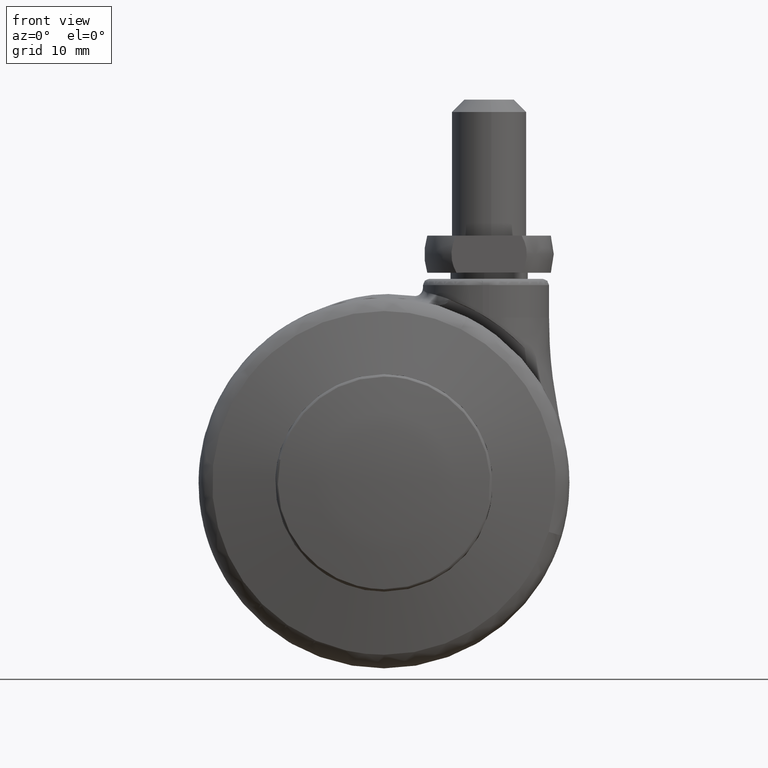
[diagram: clean part render]
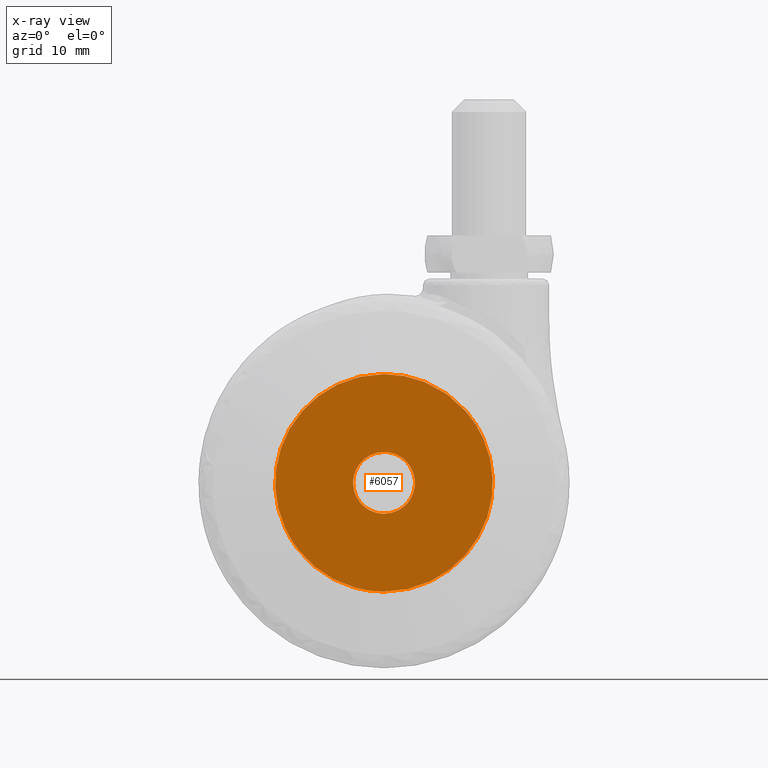
[diagram: x-ray — body ghosted, one internal face saturated and labeled with its STEP entity id]
A machine part, front view, then the same camera in x-ray: the body is ghosted and one INTERNAL B-rep face — a face not visible from any outside direction — is saturated and labeled: STEP entity #6057.
In plain terms, the highlighted face is a freeform B-spline surface patch.
Its self-contained STEP definition (entity closure, byte-faithful):
#3481=CARTESIAN_POINT('',(4.961331069103086,-17.423049182183451,0.620640010595849));
#3482=VERTEX_POINT('',#3481);
#3483=CARTESIAN_POINT('',(0.0,-17.423049182183451,4.999999999999998));
#3484=VERTEX_POINT('',#3483);
#3485=CARTESIAN_POINT('',(4.961331069103087,-17.423049182183455,0.620640010595849));
#3486=CARTESIAN_POINT('',(4.413493000398448,-17.423049182183455,4.999999999999998));
#3487=CARTESIAN_POINT('',(0.0,-17.423049182183451,4.999999999999998));
#3495=(BOUNDED_CURVE()B_SPLINE_CURVE(2,(#3485,#3486,#3487),.UNSPECIFIED.,.F.,.U.)B_SPLINE_CURVE_WITH_KNOTS((3,3),(0.271473928984074,0.500000000000000),.UNSPECIFIED.)CURVE()GEOMETRIC_REPRESENTATION_ITEM()RATIONAL_B_SPLINE_CURVE((0.954005430248767,0.732265053909415,1.0))REPRESENTATION_ITEM(''));
#3496=EDGE_CURVE('',#3482,#3484,#3495,.T.);
#3537=CARTESIAN_POINT('',(-4.999809615318402,-17.423049182183458,-0.043632677773131));
#3538=VERTEX_POINT('',#3537);
#3544=CARTESIAN_POINT('',(0.0,-17.423049182183451,4.999999999999998));
#3545=CARTESIAN_POINT('',(-5.000000000000001,-17.423049182183451,4.999999999999997));
#3546=CARTESIAN_POINT('',(-5.0,-17.423049182183451,-1.653219E-015));
#3547=CARTESIAN_POINT('',(-5.0,-17.423049182183451,-0.021816754384779));
#3548=CARTESIAN_POINT('',(-4.999809615318402,-17.423049182183462,-0.043632677773131));
#3556=(BOUNDED_CURVE()B_SPLINE_CURVE(2,(#3544,#3545,#3546,#3547,#3548),.UNSPECIFIED.,.F.,.U.)B_SPLINE_CURVE_WITH_KNOTS((3,2,3),(0.500000000000000,0.750000000000000,0.751539894354804),.UNSPECIFIED.)CURVE()GEOMETRIC_REPRESENTATION_ITEM()RATIONAL_B_SPLINE_CURVE((1.0,0.707106781186548,1.0,0.998195901543155,0.996414028054543))REPRESENTATION_ITEM(''));
#3557=EDGE_CURVE('',#3484,#3538,#3556,.T.);
#3584=CARTESIAN_POINT('',(0.0,-17.423049182183451,-5.000000000000002));
#3585=VERTEX_POINT('',#3584);
#3586=CARTESIAN_POINT('',(0.0,-17.423049182183451,-5.000000000000002));
#3587=CARTESIAN_POINT('',(5.000000000000001,-17.423049182183451,-5.000000000000002));
#3588=CARTESIAN_POINT('',(5.0,-17.423049182183451,-1.653219E-015));
#3589=CARTESIAN_POINT('',(5.0,-17.423049182183448,0.311524637866477));
#3590=CARTESIAN_POINT('',(4.961331069103087,-17.423049182183455,0.620640010595849));
#3598=(BOUNDED_CURVE()B_SPLINE_CURVE(2,(#3586,#3587,#3588,#3589,#3590),.UNSPECIFIED.,.F.,.U.)B_SPLINE_CURVE_WITH_KNOTS((3,2,3),(0.0,0.250000000000000,0.271473928984074),.UNSPECIFIED.)CURVE()GEOMETRIC_REPRESENTATION_ITEM()RATIONAL_B_SPLINE_CURVE((1.0,0.707106781186548,1.0,0.974841727277132,0.954005430248767))REPRESENTATION_ITEM(''));
#3599=EDGE_CURVE('',#3585,#3482,#3598,.T.);
#3601=CARTESIAN_POINT('',(-4.999809615318402,-17.423049182183458,-0.043632677773131));
#3602=CARTESIAN_POINT('',(-4.956556052417216,-17.423049182183448,-5.0));
#3603=CARTESIAN_POINT('',(0.0,-17.423049182183451,-5.000000000000002));
#3611=(BOUNDED_CURVE()B_SPLINE_CURVE(2,(#3601,#3602,#3603),.UNSPECIFIED.,.F.,.U.)B_SPLINE_CURVE_WITH_KNOTS((3,3),(0.751539894354805,1.0),.UNSPECIFIED.)CURVE()GEOMETRIC_REPRESENTATION_ITEM()RATIONAL_B_SPLINE_CURVE((0.996414028054542,0.708910879643393,1.0))REPRESENTATION_ITEM(''));
#3612=EDGE_CURVE('',#3538,#3585,#3611,.T.);
#3684=CARTESIAN_POINT('',(13.327396670484230,-17.423049182183451,11.495238057019540));
#3685=VERTEX_POINT('',#3684);
#3691=CARTESIAN_POINT('',(0.0,-17.423049182183451,17.600000000000001));
#3692=VERTEX_POINT('',#3691);
#3693=CARTESIAN_POINT('',(13.327396670484227,-17.423049182183451,11.495238057019536));
#3694=CARTESIAN_POINT('',(8.061875312408224,-17.423049182183455,17.599999999999998));
#3695=CARTESIAN_POINT('',(0.0,-17.423049182183451,17.600000000000001));
#3703=(BOUNDED_CURVE()B_SPLINE_CURVE(2,(#3693,#3694,#3695),.UNSPECIFIED.,.F.,.U.)B_SPLINE_CURVE_WITH_KNOTS((3,3),(0.363878058673935,0.500000000000000),.UNSPECIFIED.)CURVE()GEOMETRIC_REPRESENTATION_ITEM()RATIONAL_B_SPLINE_CURVE((0.854712756418293,0.840523225815492,1.0))REPRESENTATION_ITEM(''));
#3704=EDGE_CURVE('',#3685,#3692,#3703,.T.);
#3706=CARTESIAN_POINT('',(-13.963021350881521,-17.423049182183451,-10.714197812006690));
#3707=VERTEX_POINT('',#3706);
#3708=CARTESIAN_POINT('',(0.0,-17.423049182183451,17.600000000000001));
#3709=CARTESIAN_POINT('',(-17.600000000000005,-17.423049182183451,17.600000000000005));
#3710=CARTESIAN_POINT('',(-17.600000000000001,-17.423049182183451,-1.653219E-015));
#3711=CARTESIAN_POINT('',(-17.600000000000001,-17.423049182183451,-5.974392609472228));
#3712=CARTESIAN_POINT('',(-13.963021350881522,-17.423049182183451,-10.714197812006688));
#3720=(BOUNDED_CURVE()B_SPLINE_CURVE(2,(#3708,#3709,#3710,#3711,#3712),.UNSPECIFIED.,.F.,.U.)B_SPLINE_CURVE_WITH_KNOTS((3,2,3),(0.500000000000000,0.750000000000000,0.855220474161055),.UNSPECIFIED.)CURVE()GEOMETRIC_REPRESENTATION_ITEM()RATIONAL_B_SPLINE_CURVE((1.0,0.707106781186548,1.0,0.876726546551564,0.857220222889649))REPRESENTATION_ITEM(''));
#3721=EDGE_CURVE('',#3692,#3707,#3720,.T.);
#3831=CARTESIAN_POINT('',(0.0,-17.423049182183451,-17.600000000000001));
#3832=VERTEX_POINT('',#3831);
#3833=CARTESIAN_POINT('',(-13.963021350881522,-17.423049182183451,-10.714197812006688));
#3834=CARTESIAN_POINT('',(-8.679362113918300,-17.423049182183448,-17.599999999999998));
#3835=CARTESIAN_POINT('',(0.0,-17.423049182183451,-17.600000000000001));
#3843=(BOUNDED_CURVE()B_SPLINE_CURVE(2,(#3833,#3834,#3835),.UNSPECIFIED.,.F.,.U.)B_SPLINE_CURVE_WITH_KNOTS((3,3),(0.855220474161055,1.0),.UNSPECIFIED.)CURVE()GEOMETRIC_REPRESENTATION_ITEM()RATIONAL_B_SPLINE_CURVE((0.857220222889649,0.830380234634984,1.0))REPRESENTATION_ITEM(''));
#3844=EDGE_CURVE('',#3707,#3832,#3843,.T.);
#3846=CARTESIAN_POINT('',(0.0,-17.423049182183451,-17.600000000000001));
#3847=CARTESIAN_POINT('',(17.600000000000005,-17.423049182183451,-17.600000000000005));
#3848=CARTESIAN_POINT('',(17.600000000000001,-17.423049182183451,-1.653219E-015));
#3849=CARTESIAN_POINT('',(17.600000000000005,-17.423049182183444,6.541649527088342));
#3850=CARTESIAN_POINT('',(13.327396670484227,-17.423049182183451,11.495238057019536));
#3858=(BOUNDED_CURVE()B_SPLINE_CURVE(2,(#3846,#3847,#3848,#3849,#3850),.UNSPECIFIED.,.F.,.U.)B_SPLINE_CURVE_WITH_KNOTS((3,2,3),(0.0,0.250000000000000,0.363878058673935),.UNSPECIFIED.)CURVE()GEOMETRIC_REPRESENTATION_ITEM()RATIONAL_B_SPLINE_CURVE((1.0,0.707106781186548,1.0,0.866583555371056,0.854712756418293))REPRESENTATION_ITEM(''));
#3859=EDGE_CURVE('',#3832,#3685,#3858,.T.);
#6040=CARTESIAN_POINT('',(-19.356338802542169,-17.423049182183451,-19.358240592640389));
#6041=CARTESIAN_POINT('',(-19.356338802542169,-17.423049182183451,19.358240907352929));
#6042=CARTESIAN_POINT('',(19.351445966925102,-17.423049182183451,-19.358240592640399));
#6043=CARTESIAN_POINT('',(19.351445966925102,-17.423049182183451,19.358240907352929));
#6044=B_SPLINE_SURFACE_WITH_KNOTS('',1,1,((#6040,#6042),(#6041,#6043)),.UNSPECIFIED.,.F.,.F.,.U.,(2,2),(2,2),(0.0,38.716481499993321),(0.0,38.707784769467267),.UNSPECIFIED.);
#6045=ORIENTED_EDGE('',*,*,#3844,.F.);
#6046=ORIENTED_EDGE('',*,*,#3721,.F.);
#6047=ORIENTED_EDGE('',*,*,#3704,.F.);
#6048=ORIENTED_EDGE('',*,*,#3859,.F.);
#6049=EDGE_LOOP('',(#6045,#6046,#6047,#6048));
#6050=FACE_OUTER_BOUND('',#6049,.T.);
#6051=ORIENTED_EDGE('',*,*,#3557,.T.);
#6052=ORIENTED_EDGE('',*,*,#3612,.T.);
#6053=ORIENTED_EDGE('',*,*,#3599,.T.);
#6054=ORIENTED_EDGE('',*,*,#3496,.T.);
#6055=EDGE_LOOP('',(#6051,#6052,#6053,#6054));
#6056=FACE_BOUND('',#6055,.T.);
#6057=ADVANCED_FACE('',(#6050,#6056),#6044,.T.);